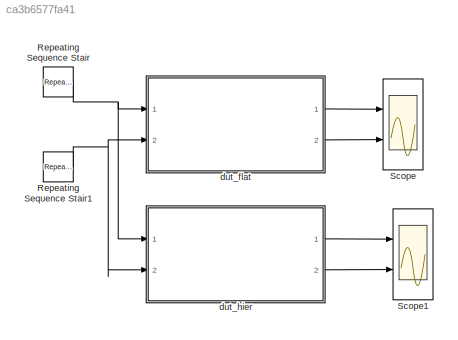
MODEL slx_ca3b6577fa41
KIND model
CONFIG AbsTol = auto
CONFIG FixedStep = auto
CONFIG MaxStep = auto
CONFIG MinStep = auto
CONFIG RelTol = 1e-3
CONFIG SampleTimeConstraint = Unconstrained
CONFIG Solver = FixedStepDiscrete
CONFIG SolverMode = SingleTasking
CONFIG SolverName = FixedStepDiscrete
CONFIG StartTime = 0.0
CONFIG StopTime = 10.0
BLOCK [Reference] Repeating Sequence Stair  REF=simulink/Sources/Repeating
Sequence
Stair
  Ports = [0, 1]
  SourceBlock = simulink/Sources/Repeating\nSequence\nStair
  SourceType = Repeating Sequence Stair
BLOCK [Reference] Repeating Sequence Stair1  REF=simulink/Sources/Repeating
Sequence
Stair
  Ports = [0, 1]
  SourceBlock = simulink/Sources/Repeating\nSequence\nStair
  SourceType = Repeating Sequence Stair
BLOCK [Scope] Scope
  NumInputPorts = 2
  Ports = [2]
  ScopeSpecificationString = C++SS(StrPVP('Location','[1025, 200, 1349, 439]'),StrPVP('Open','off'),MxPVP('AxesTitles',24,'struct(''axes1'',''%<SignalLabel>'',''axes2'',''%<SignalLabel>'')'),StrPVP('YMin','-5~-5'),StrPVP('YMax','5~5'),StrPVP('DataFormat','StructureWithTime'),StrPVP('BlockParamSampleTime','0'),StrPVP('LimitDataPoints','on'),StrPVP('Decimation','1'),StrPVP('BlockParamSampleInput','off'))
BLOCK [Scope] Scope1
  NumInputPorts = 2
  Ports = [2]
  ScopeSpecificationString = C++SS(StrPVP('Location','[1025, 200, 1349, 439]'),StrPVP('Open','off'),MxPVP('AxesTitles',24,'struct(''axes1'',''%<SignalLabel>'',''axes2'',''%<SignalLabel>'')'),StrPVP('YMin','-5~-5'),StrPVP('YMax','5~5'),StrPVP('SaveName','ScopeData1'),StrPVP('DataFormat','StructureWithTime'),StrPVP('BlockParamSampleTime','0'),StrPVP('LimitDataPoints','on'),StrPVP('Decimation','1'),StrPVP('BlockParamSampleInput'...<+8ch>
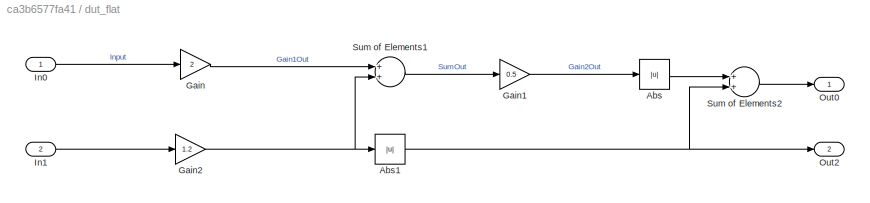
BLOCK [SubSystem] dut_flat
  Ports = [2, 2]
  RequestExecContextInheritance = off
  Variant = off
BLOCK [Abs] dut_flat/Abs
  SaturateOnIntegerOverflow = off
BLOCK [Abs] dut_flat/Abs1
  SaturateOnIntegerOverflow = off
BLOCK [Gain] dut_flat/Gain
  Gain = 2
  ParamDataTypeStr = fixdt(0,4,2)
  SaturateOnIntegerOverflow = off
BLOCK [Gain] dut_flat/Gain1
  Gain = 0.5
  ParamDataTypeStr = fixdt(0,1,1)
  ParamMax = 0.5
  ParamMin = 0.5
  SaturateOnIntegerOverflow = off
BLOCK [Gain] dut_flat/Gain2
  Gain = 1.2
  ParamDataTypeStr = fixdt(0,4,2)
  SaturateOnIntegerOverflow = off
BLOCK [Inport] dut_flat/In0
  IconDisplay = Port number
BLOCK [Inport] dut_flat/In1
  IconDisplay = Port number
  Port = 2
BLOCK [Outport] dut_flat/Out0
  IconDisplay = Port number
BLOCK [Outport] dut_flat/Out2
  IconDisplay = Port number
  Port = 2
BLOCK [Sum] dut_flat/Sum of Elements1
  InputSameDT = off
  Ports = [2, 1]
  SaturateOnIntegerOverflow = off
BLOCK [Sum] dut_flat/Sum of Elements2
  InputSameDT = off
  Ports = [2, 1]
  SaturateOnIntegerOverflow = off
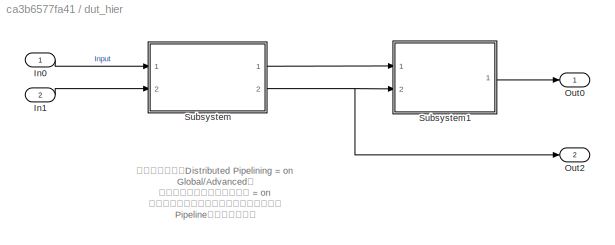
BLOCK [SubSystem] dut_hier
  Ports = [2, 2]
  RequestExecContextInheritance = off
  Variant = off
BLOCK [Inport] dut_hier/In0
  IconDisplay = Port number
BLOCK [Inport] dut_hier/In1
  IconDisplay = Port number
  Port = 2
BLOCK [Outport] dut_hier/Out0
  IconDisplay = Port number
BLOCK [Outport] dut_hier/Out2
  IconDisplay = Port number
  Port = 2
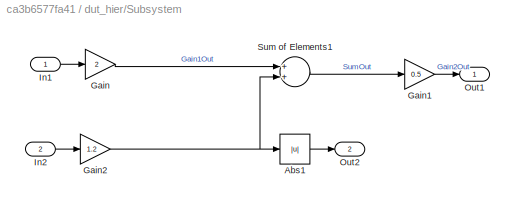
BLOCK [SubSystem] dut_hier/Subsystem
  Ports = [2, 2]
  RequestExecContextInheritance = off
  Variant = off
BLOCK [Abs] dut_hier/Subsystem/Abs1
  SaturateOnIntegerOverflow = off
BLOCK [Gain] dut_hier/Subsystem/Gain
  Gain = 2
  ParamDataTypeStr = fixdt(0,4,2)
  SaturateOnIntegerOverflow = off
BLOCK [Gain] dut_hier/Subsystem/Gain1
  Gain = 0.5
  ParamDataTypeStr = fixdt(0,1,1)
  ParamMax = 0.5
  ParamMin = 0.5
  SaturateOnIntegerOverflow = off
BLOCK [Gain] dut_hier/Subsystem/Gain2
  Gain = 1.2
  ParamDataTypeStr = fixdt(0,4,2)
  SaturateOnIntegerOverflow = off
BLOCK [Inport] dut_hier/Subsystem/In1
  IconDisplay = Port number
BLOCK [Inport] dut_hier/Subsystem/In2
  IconDisplay = Port number
  Port = 2
BLOCK [Outport] dut_hier/Subsystem/Out1
  IconDisplay = Port number
BLOCK [Outport] dut_hier/Subsystem/Out2
  IconDisplay = Port number
  Port = 2
BLOCK [Sum] dut_hier/Subsystem/Sum of Elements1
  InputSameDT = off
  Ports = [2, 1]
  SaturateOnIntegerOverflow = off
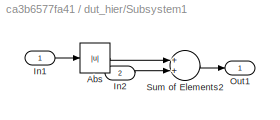
BLOCK [SubSystem] dut_hier/Subsystem1
  Ports = [2, 1]
  RequestExecContextInheritance = off
  Variant = off
BLOCK [Abs] dut_hier/Subsystem1/Abs
  SaturateOnIntegerOverflow = off
BLOCK [Inport] dut_hier/Subsystem1/In1
  IconDisplay = Port number
BLOCK [Inport] dut_hier/Subsystem1/In2
  IconDisplay = Port number
  Port = 2
BLOCK [Outport] dut_hier/Subsystem1/Out1
  IconDisplay = Port number
BLOCK [Sum] dut_hier/Subsystem1/Sum of Elements2
  InputSameDT = off
  Ports = [2, 1]
  SaturateOnIntegerOverflow = off
ANNOTATION dut_hier: サブシステムのDistributed Pipelining = on Global/Advancedの 階層分布型パイプライン方式 = on に設定するとサブシステム階層をまたいで Pipelineが挿入される。
NET Repeating Sequence Stair1:1 -> dut_flat:2, dut_hier:2
NET Repeating Sequence Stair:1 -> dut_flat:1, dut_hier:1
NET dut_flat/Abs1:1 -> dut_flat/Out2:1, dut_flat/Sum of Elements2:2
LINE dut_flat/Abs:1 -> dut_flat/Sum of Elements2:1
LINE dut_flat/Gain1:1 -> dut_flat/Abs:1
NET dut_flat/Gain2:1 -> dut_flat/Abs1:1, dut_flat/Sum of Elements1:2
LINE dut_flat/Gain:1 -> dut_flat/Sum of Elements1:1
LINE dut_flat/In0:1 -> dut_flat/Gain:1
LINE dut_flat/In1:1 -> dut_flat/Gain2:1
LINE dut_flat/Sum of Elements1:1 -> dut_flat/Gain1:1
LINE dut_flat/Sum of Elements2:1 -> dut_flat/Out0:1
LINE dut_flat:1 -> Scope:1
LINE dut_flat:2 -> Scope:2
LINE dut_hier/In0:1 -> dut_hier/Subsystem:1
LINE dut_hier/In1:1 -> dut_hier/Subsystem:2
LINE dut_hier/Subsystem/Abs1:1 -> dut_hier/Subsystem/Out2:1
LINE dut_hier/Subsystem/Gain1:1 -> dut_hier/Subsystem/Out1:1
NET dut_hier/Subsystem/Gain2:1 -> dut_hier/Subsystem/Abs1:1, dut_hier/Subsystem/Sum of Elements1:2
LINE dut_hier/Subsystem/Gain:1 -> dut_hier/Subsystem/Sum of Elements1:1
LINE dut_hier/Subsystem/In1:1 -> dut_hier/Subsystem/Gain:1
LINE dut_hier/Subsystem/In2:1 -> dut_hier/Subsystem/Gain2:1
LINE dut_hier/Subsystem/Sum of Elements1:1 -> dut_hier/Subsystem/Gain1:1
LINE dut_hier/Subsystem1/Abs:1 -> dut_hier/Subsystem1/Sum of Elements2:1
LINE dut_hier/Subsystem1/In1:1 -> dut_hier/Subsystem1/Abs:1
LINE dut_hier/Subsystem1/In2:1 -> dut_hier/Subsystem1/Sum of Elements2:2
LINE dut_hier/Subsystem1/Sum of Elements2:1 -> dut_hier/Subsystem1/Out1:1
LINE dut_hier/Subsystem1:1 -> dut_hier/Out0:1
LINE dut_hier/Subsystem:1 -> dut_hier/Subsystem1:1
NET dut_hier/Subsystem:2 -> dut_hier/Out2:1, dut_hier/Subsystem1:2
LINE dut_hier:1 -> Scope1:1
LINE dut_hier:2 -> Scope1:2
note: NET lines group one-source signal fan-out (src -> all destinations, sorted); 1:1 wires keep LINE
